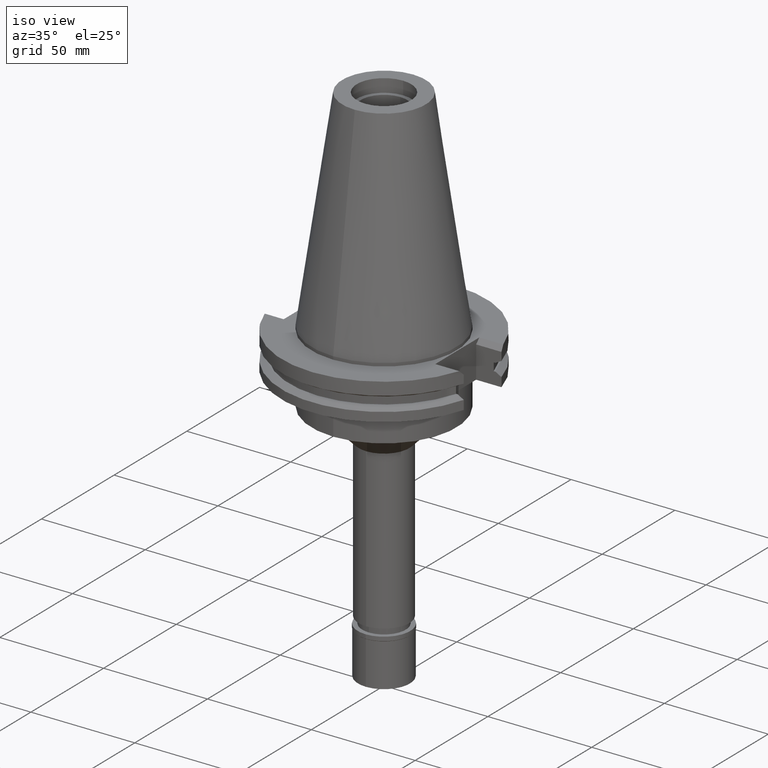
[diagram: clean part render]
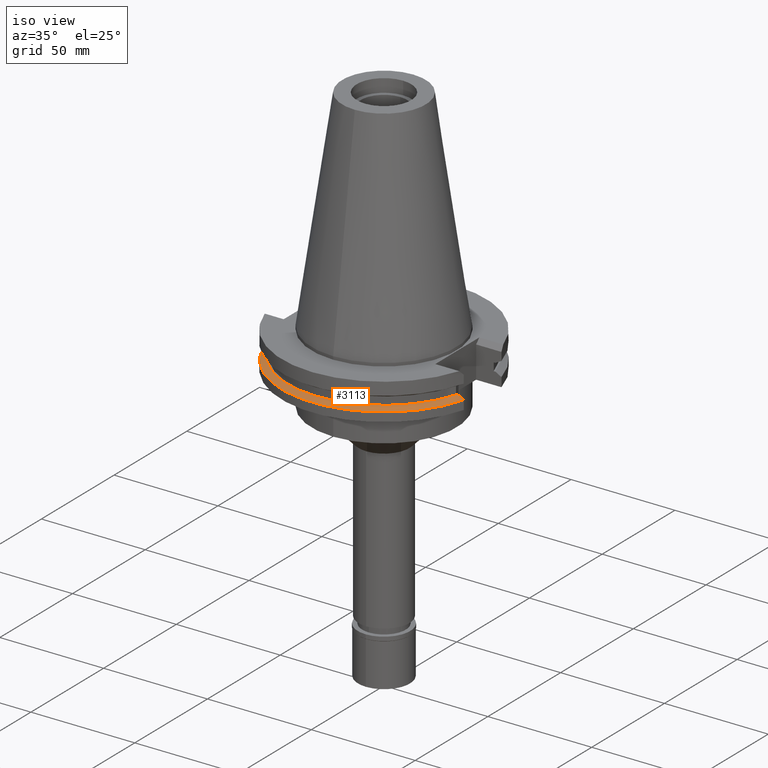
[diagram: same view with one face highlighted and labeled with its STEP entity id]
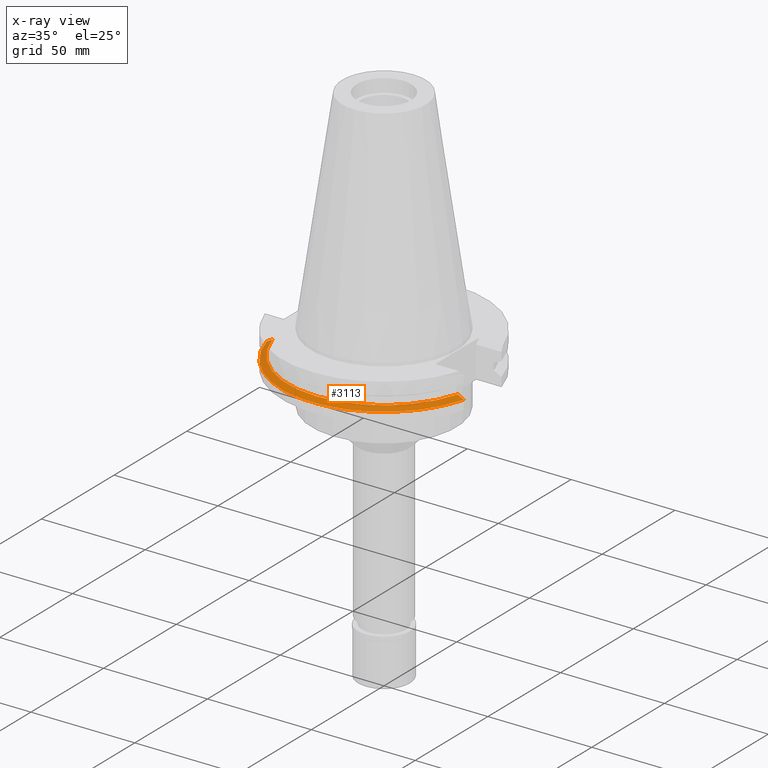
[diagram: x-ray of the same camera — body ghosted, the highlighted face saturated]
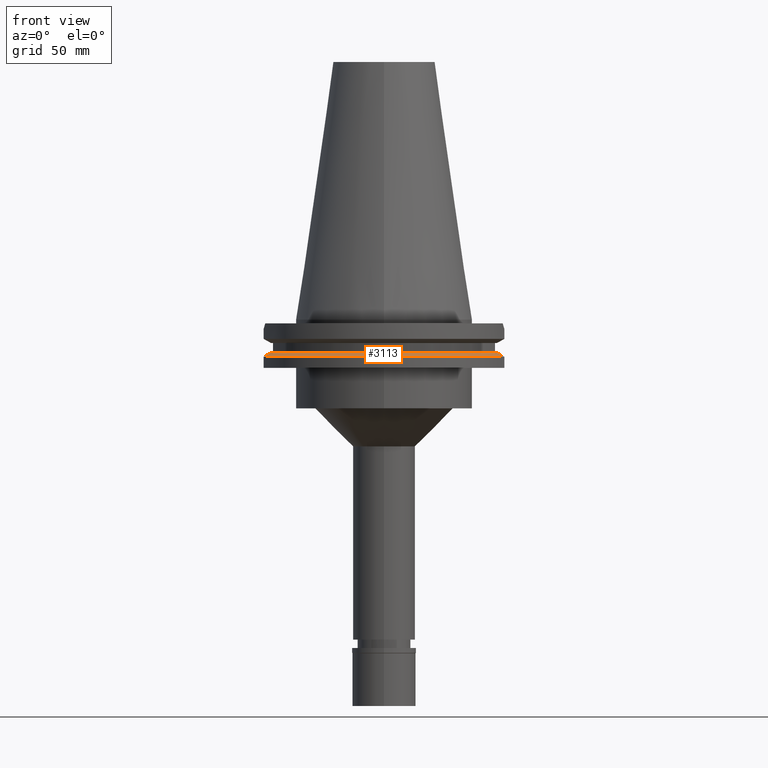
[diagram: same view with one face highlighted and labeled with its STEP entity id]
A machine part, iso view. The second image highlights one B-rep face of the part: STEP entity #3113.
The next image is the same camera in x-ray: the body ghosted, the highlighted face saturated — about 0% of this face is hidden behind the body in this view.
A second angle (front view) of the same face is appended — the face is thin or edge-on in the first view.
In plain terms, the highlighted conical surface has half-angle 60 deg.
Its self-contained STEP definition (entity closure, byte-faithful):
#156 = CARTESIAN_POINT ( 'NONE',  ( 46.48531137486769182, -12.95500000000000007, -14.10147042505990633 ) ) ;
#338 = B_SPLINE_CURVE_WITH_KNOTS ( 'NONE', 3,
 ( #1668, #379, #1412, #394 ),
 .UNSPECIFIED., .F., .F.,
 ( 4, 4 ),
 ( 0.0000000000000000000, 1.000000000000000000 ),
 .UNSPECIFIED. ) ;
#376 = CARTESIAN_POINT ( 'NONE',  ( 0.0000000000000000000, 1.055026073064999954E-14, -13.85058338454000015 ) ) ;
#379 = CARTESIAN_POINT ( 'NONE',  ( -46.48531138143672337, -12.95500000000000007, -14.10147042870506695 ) ) ;
#394 = CARTESIAN_POINT ( 'NONE',  ( -44.58657636813000380, -12.95500000000000007, -13.04749999999999943 ) ) ;
#556 = B_SPLINE_CURVE_WITH_KNOTS ( 'NONE', 3,
 ( #1953, #1396, #156, #2476 ),
 .UNSPECIFIED., .F., .F.,
 ( 4, 4 ),
 ( 0.0000000000000000000, 1.000000000000000000 ),
 .UNSPECIFIED. ) ;
#766 = VERTEX_POINT ( 'NONE', #1746 ) ;
#852 = EDGE_CURVE ( 'NONE', #766, #2194, #937, .T. ) ;
#937 = CIRCLE ( 'NONE', #1799, 46.43053755053000486 ) ;
#1114 = CONICAL_SURFACE ( 'NONE', #1434, 47.82151877527000039, 1.047197551196400456 ) ;
#1127 = AXIS2_PLACEMENT_3D ( 'NONE', #1719, #2271, #1195 ) ;
#1160 = FACE_OUTER_BOUND ( 'NONE', #1252, .T. ) ;
#1175 = CARTESIAN_POINT ( 'NONE',  ( 0.0000000000000000000, 1.055026073064999954E-14, -13.04749999999999943 ) ) ;
#1195 = DIRECTION ( 'NONE',  ( 0.9647287063660957562, -0.2632461264922989486, 0.0000000000000000000 ) ) ;
#1252 = EDGE_LOOP ( 'NONE', ( #1403, #2829, #1863, #3066 ) ) ;
#1396 = CARTESIAN_POINT ( 'NONE',  ( 45.52193301023102379, -12.95500000000000007, -13.56608150203324037 ) ) ;
#1403 = ORIENTED_EDGE ( 'NONE', *, *, #1711, .F. ) ;
#1412 = CARTESIAN_POINT ( 'NONE',  ( -45.52193301680006243, -12.95500000000000007, -13.56608150567840099 ) ) ;
#1434 = AXIS2_PLACEMENT_3D ( 'NONE', #376, #3200, #3214 ) ;
#1483 = CARTESIAN_POINT ( 'NONE',  ( 47.47671146204000081, -12.95500000000000007, -14.65366676908000088 ) ) ;
#1668 = CARTESIAN_POINT ( 'NONE',  ( -47.47671146204000081, -12.95500000000000007, -14.65366676908000088 ) ) ;
#1711 = EDGE_CURVE ( 'NONE', #2089, #2194, #338, .T. ) ;
#1719 = CARTESIAN_POINT ( 'NONE',  ( 0.0000000000000000000, 1.055026073064999954E-14, -14.65366676908000088 ) ) ;
#1746 = CARTESIAN_POINT ( 'NONE',  ( 44.58657636813000380, -12.95500000000000007, -13.04749999999999943 ) ) ;
#1759 = VERTEX_POINT ( 'NONE', #1483 ) ;
#1799 = AXIS2_PLACEMENT_3D ( 'NONE', #1175, #2995, #2217 ) ;
#1863 = ORIENTED_EDGE ( 'NONE', *, *, #3135, .F. ) ;
#1884 = CARTESIAN_POINT ( 'NONE',  ( -44.58657636813000380, -12.95500000000000007, -13.04749999999999943 ) ) ;
#1899 = CARTESIAN_POINT ( 'NONE',  ( -47.47671146204000081, -12.95500000000000007, -14.65366676908000088 ) ) ;
#1953 = CARTESIAN_POINT ( 'NONE',  ( 44.58657636813000380, -12.95500000000000007, -13.04749999999999943 ) ) ;
#2089 = VERTEX_POINT ( 'NONE', #1899 ) ;
#2194 = VERTEX_POINT ( 'NONE', #1884 ) ;
#2217 = DIRECTION ( 'NONE',  ( 0.9602855947900087452, -0.2790189535476025329, 0.0000000000000000000 ) ) ;
#2271 = DIRECTION ( 'NONE',  ( 0.0000000000000000000, 0.0000000000000000000, -1.000000000000000000 ) ) ;
#2291 = EDGE_CURVE ( 'NONE', #1759, #2089, #3257, .T. ) ;
#2476 = CARTESIAN_POINT ( 'NONE',  ( 47.47671146204000081, -12.95500000000000007, -14.65366676908000088 ) ) ;
#2829 = ORIENTED_EDGE ( 'NONE', *, *, #2291, .F. ) ;
#2995 = DIRECTION ( 'NONE',  ( 0.0000000000000000000, 0.0000000000000000000, -1.000000000000000000 ) ) ;
#3066 = ORIENTED_EDGE ( 'NONE', *, *, #852, .T. ) ;
#3113 = ADVANCED_FACE ( 'NONE', ( #1160 ), #1114, .T. ) ;
#3135 = EDGE_CURVE ( 'NONE', #766, #1759, #556, .T. ) ;
#3200 = DIRECTION ( 'NONE',  ( 0.0000000000000000000, 0.0000000000000000000, -1.000000000000000000 ) ) ;
#3214 = DIRECTION ( 'NONE',  ( 0.0000000000000000000, -1.000000000000000000, 0.0000000000000000000 ) ) ;
#3257 = CIRCLE ( 'NONE', #1127, 49.21250000000001279 ) ;